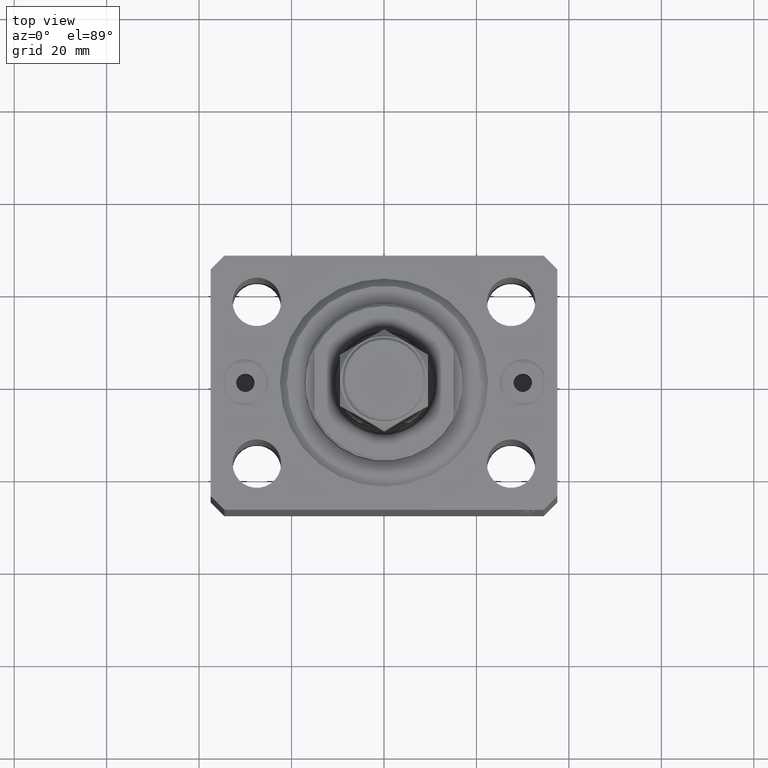
[diagram: clean part render]
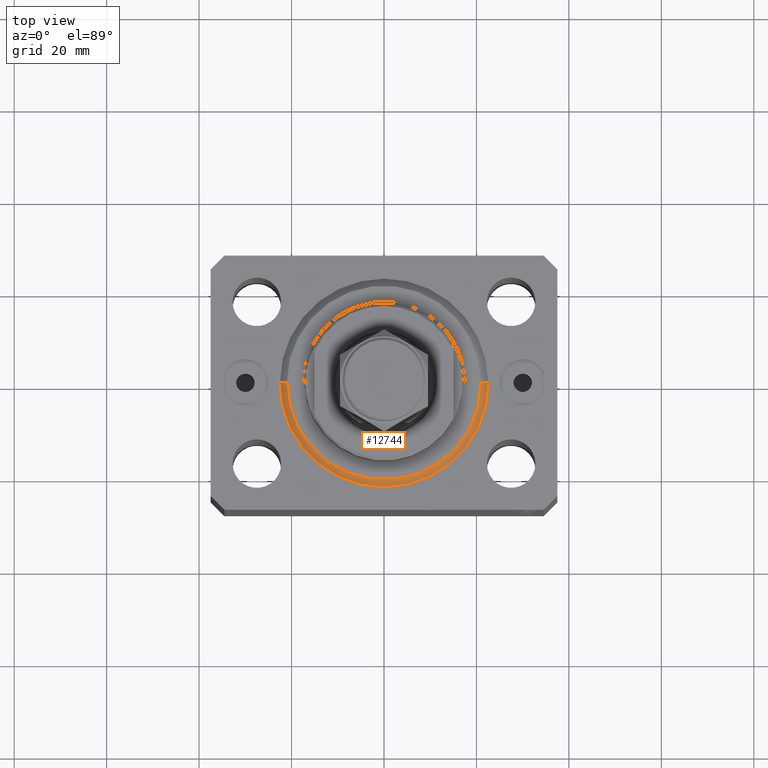
[diagram: same view with one face highlighted and labeled with its STEP entity id]
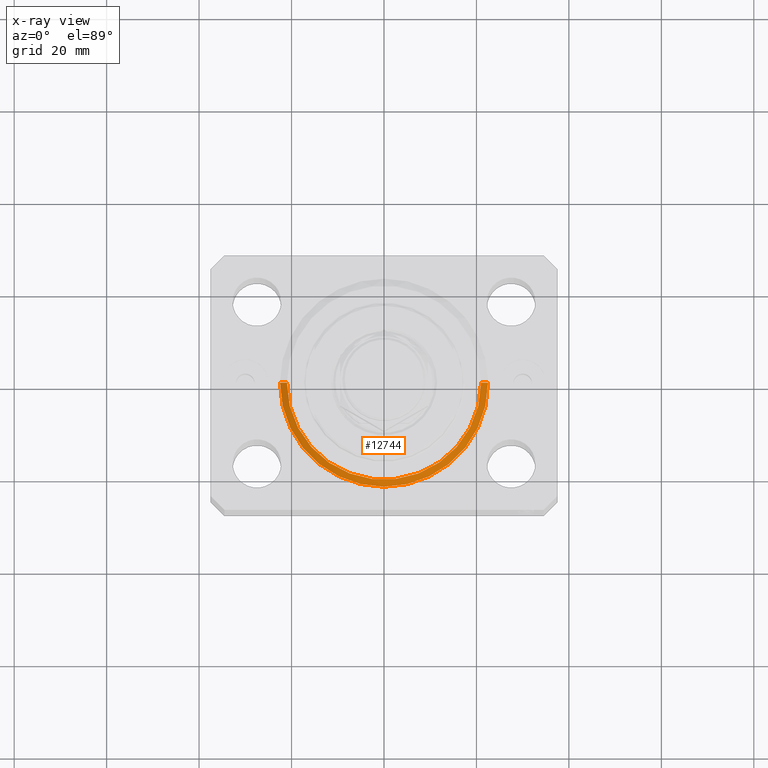
[diagram: x-ray of the same camera — body ghosted, the highlighted face saturated]
A machine part, top view. The second image highlights one B-rep face of the part: STEP entity #12744.
The next image is the same camera in x-ray: the body ghosted, the highlighted face saturated — about 0% of this face is hidden behind the body in this view.
In plain terms, the highlighted conical surface has half-angle 45 deg.
Its self-contained STEP definition (entity closure, byte-faithful):
#1183 = CARTESIAN_POINT ( 'NONE',  ( -22.50000000000000355, 0.000000000000000000, 1.500000000000001332 ) ) ;
#3080 = CIRCLE ( 'NONE', #18731, 20.99999999999998934 ) ;
#4048 = DIRECTION ( 'NONE',  ( 1.000000000000000000, 0.000000000000000000, 0.000000000000000000 ) ) ;
#4833 = VERTEX_POINT ( 'NONE', #1183 ) ;
#4861 = DIRECTION ( 'NONE',  ( 1.000000000000000000, 0.000000000000000000, 0.000000000000000000 ) ) ;
#7188 = EDGE_CURVE ( 'NONE', #11342, #14944, #17439, .T. ) ;
#7672 = DIRECTION ( 'NONE',  ( -0.000000000000000000, -0.000000000000000000, 1.000000000000000000 ) ) ;
#8371 = FACE_OUTER_BOUND ( 'NONE', #29807, .T. ) ;
#11342 = VERTEX_POINT ( 'NONE', #30144 ) ;
#12744 = ADVANCED_FACE ( 'NONE', ( #8371 ), #25169, .T. ) ;
#14944 = VERTEX_POINT ( 'NONE', #37610 ) ;
#15349 = VECTOR ( 'NONE', #27525, 1000.000000000000114 ) ;
#15807 = ORIENTED_EDGE ( 'NONE', *, *, #21806, .F. ) ;
#16993 = CARTESIAN_POINT ( 'NONE',  ( 22.50000000000000355, 0.000000000000000000, 1.500000000000001332 ) ) ;
#17439 = LINE ( 'NONE', #16993, #15349 ) ;
#18731 = AXIS2_PLACEMENT_3D ( 'NONE', #22817, #37031, #27028 ) ;
#20711 = ORIENTED_EDGE ( 'NONE', *, *, #7188, .T. ) ;
#20739 = CIRCLE ( 'NONE', #31943, 22.50000000000000355 ) ;
#21806 = EDGE_CURVE ( 'NONE', #30173, #4833, #44922, .T. ) ;
#22598 = CARTESIAN_POINT ( 'NONE',  ( 0.000000000000000000, 0.000000000000000000, 1.500000000000001332 ) ) ;
#22817 = CARTESIAN_POINT ( 'NONE',  ( 0.000000000000000000, 0.000000000000000000, 0.000000000000000000 ) ) ;
#25169 = CONICAL_SURFACE ( 'NONE', #39346, 22.50000000000000355, 0.7853981633974517207 ) ;
#27028 = DIRECTION ( 'NONE',  ( 1.000000000000000000, 0.000000000000000000, 0.000000000000000000 ) ) ;
#27208 = CARTESIAN_POINT ( 'NONE',  ( -22.50000000000000355, 2.755455298081545172E-15, 1.500000000000001332 ) ) ;
#27525 = DIRECTION ( 'NONE',  ( 0.7071067811865500152, 0.000000000000000000, 0.7071067811865451302 ) ) ;
#28889 = CARTESIAN_POINT ( 'NONE',  ( -20.99999999999998934, 2.663606788145492628E-15, 0.000000000000000000 ) ) ;
#29382 = EDGE_CURVE ( 'NONE', #11342, #30173, #3080, .T. ) ;
#29807 = EDGE_LOOP ( 'NONE', ( #15807, #34219, #20711, #43217 ) ) ;
#30144 = CARTESIAN_POINT ( 'NONE',  ( 20.99999999999998934, 0.000000000000000000, 0.000000000000000000 ) ) ;
#30173 = VERTEX_POINT ( 'NONE', #28889 ) ;
#30482 = DIRECTION ( 'NONE',  ( -0.7071067811865500152, 8.659560562354963673E-17, 0.7071067811865451302 ) ) ;
#31943 = AXIS2_PLACEMENT_3D ( 'NONE', #33420, #43461, #4048 ) ;
#33420 = CARTESIAN_POINT ( 'NONE',  ( 0.000000000000000000, 0.000000000000000000, 1.500000000000001332 ) ) ;
#34219 = ORIENTED_EDGE ( 'NONE', *, *, #29382, .F. ) ;
#36148 = EDGE_CURVE ( 'NONE', #4833, #14944, #20739, .T. ) ;
#37031 = DIRECTION ( 'NONE',  ( -0.000000000000000000, -0.000000000000000000, -1.000000000000000000 ) ) ;
#37610 = CARTESIAN_POINT ( 'NONE',  ( 22.50000000000000355, 2.755455298081545172E-15, 1.500000000000001332 ) ) ;
#37898 = VECTOR ( 'NONE', #30482, 1000.000000000000114 ) ;
#39346 = AXIS2_PLACEMENT_3D ( 'NONE', #22598, #7672, #4861 ) ;
#43217 = ORIENTED_EDGE ( 'NONE', *, *, #36148, .F. ) ;
#43461 = DIRECTION ( 'NONE',  ( -0.000000000000000000, -0.000000000000000000, 1.000000000000000000 ) ) ;
#44922 = LINE ( 'NONE', #27208, #37898 ) ;